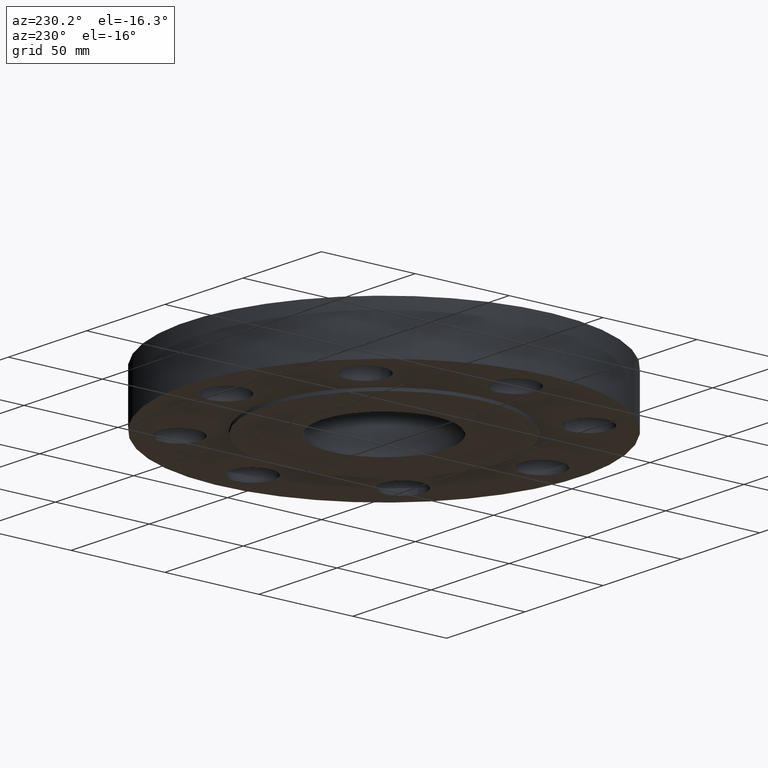
[diagram: clean part render]
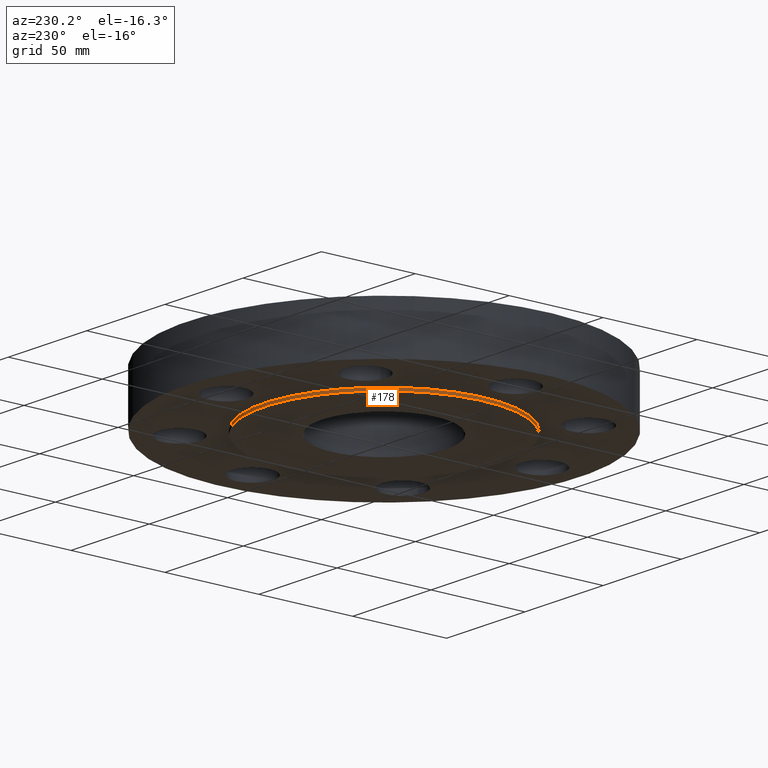
[diagram: same view with one face highlighted and labeled with its STEP entity id]
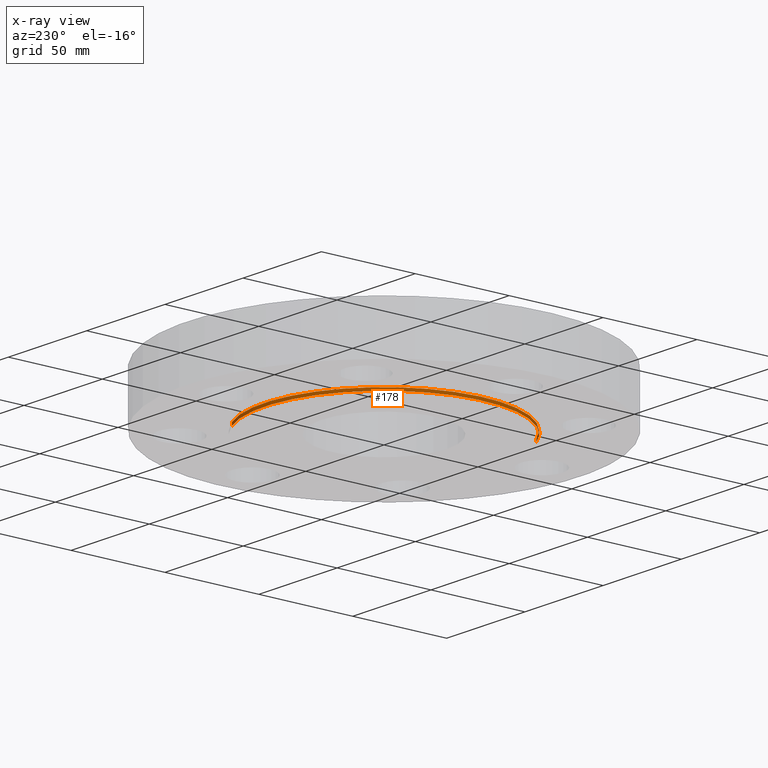
[diagram: x-ray of the same camera — body ghosted, the highlighted face saturated]
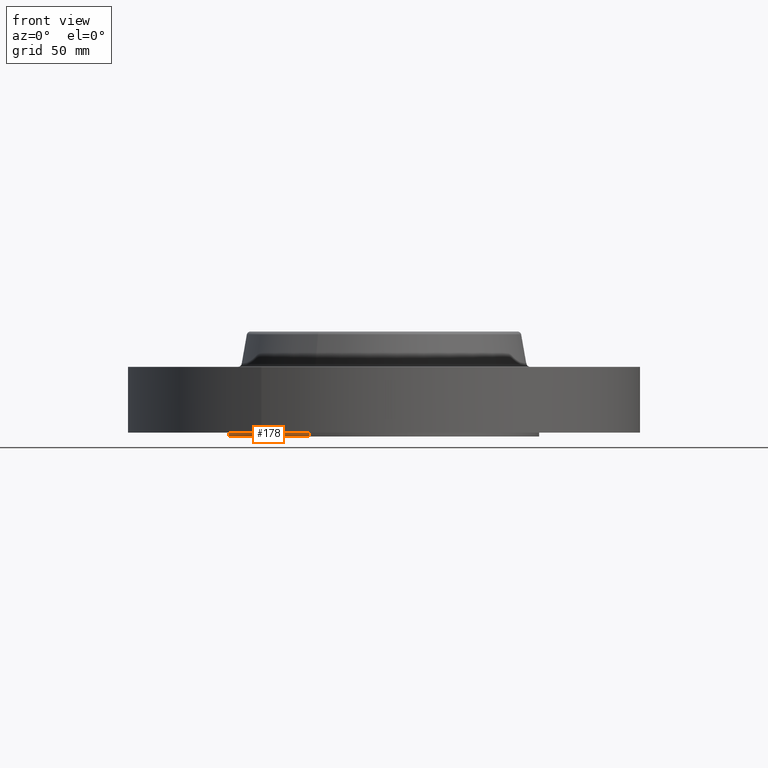
[diagram: same view with one face highlighted and labeled with its STEP entity id]
A machine part, auxiliary view. The second image highlights one B-rep face of the part: STEP entity #178.
The next image is the same camera in x-ray: the body ghosted, the highlighted face saturated — about 0% of this face is hidden behind the body in this view.
A second angle (front view) of the same face is appended — the face is thin or edge-on in the first view.
In plain terms, the highlighted cylindrical surface (partial cylindrical patch) has radius 63.5 mm, axis along (0, 0, -1).
Its self-contained STEP definition (entity closure, byte-faithful):
#127=AXIS2_PLACEMENT_3D('Circle Axis2P3D',#125,#126,$) ;
#151=AXIS2_PLACEMENT_3D('Cylinder Axis2P3D',#148,#149,#150) ;
#162=AXIS2_PLACEMENT_3D('Circle Axis2P3D',#160,#161,$) ;
#125=CARTESIAN_POINT('Axis2P3D Location',(0.,0.,-0.0625000000003)) ;
#129=CARTESIAN_POINT('Vertex',(-1.19856384652,-2.19395640473,-0.0625000000002)) ;
#131=CARTESIAN_POINT('Vertex',(1.19856384652,2.19395640473,-0.0625000000002)) ;
#148=CARTESIAN_POINT('Axis2P3D Location',(0.,0.,0.783750000003)) ;
#153=CARTESIAN_POINT('Line Origine',(-1.19856384652,-2.19395640473,-0.0312500000001)) ;
#157=CARTESIAN_POINT('Vertex',(-1.19856384652,-2.19395640473,4.19611851827E-016)) ;
#160=CARTESIAN_POINT('Axis2P3D Location',(0.,0.,4.19611851827E-016)) ;
#164=CARTESIAN_POINT('Vertex',(1.19856384652,2.19395640473,4.19611851827E-016)) ;
#167=CARTESIAN_POINT('Line Origine',(1.19856384652,2.19395640473,-0.0312500000001)) ;
#126=DIRECTION('Axis2P3D Direction',(0.,0.,-0.0393700787402)) ;
#149=DIRECTION('Axis2P3D Direction',(0.,0.,-0.0393700787402)) ;
#150=DIRECTION('Axis2P3D XDirection',(0.0188750212049,0.0345504945626,0.)) ;
#154=DIRECTION('Vector Direction',(0.,0.,-0.0393700787402)) ;
#161=DIRECTION('Axis2P3D Direction',(0.,0.,-0.0393700787402)) ;
#168=DIRECTION('Vector Direction',(0.,0.,-0.0393700787402)) ;
#155=VECTOR('Line Direction',#154,0.0393700787402) ;
#169=VECTOR('Line Direction',#168,0.0393700787402) ;
#173=ORIENTED_EDGE('',*,*,#133,.F.) ;
#174=ORIENTED_EDGE('',*,*,#159,.T.) ;
#175=ORIENTED_EDGE('',*,*,#166,.T.) ;
#176=ORIENTED_EDGE('',*,*,#171,.F.) ;
#178=ADVANCED_FACE('PartBody',(#177),#152,.T.) ;
#128=CIRCLE('generated circle',#127,2.50000000001) ;
#163=CIRCLE('generated circle',#162,2.50000000001) ;
#152=CYLINDRICAL_SURFACE('generated cylinder',#151,2.50000000001) ;
#133=EDGE_CURVE('',#130,#132,#128,.T.) ;
#159=EDGE_CURVE('',#130,#158,#156,.F.) ;
#166=EDGE_CURVE('',#158,#165,#163,.T.) ;
#171=EDGE_CURVE('',#132,#165,#170,.F.) ;
#172=EDGE_LOOP('',(#173,#174,#175,#176)) ;
#177=FACE_OUTER_BOUND('',#172,.T.) ;
#156=LINE('Line',#153,#155) ;
#170=LINE('Line',#167,#169) ;
#130=VERTEX_POINT('',#129) ;
#132=VERTEX_POINT('',#131) ;
#158=VERTEX_POINT('',#157) ;
#165=VERTEX_POINT('',#164) ;